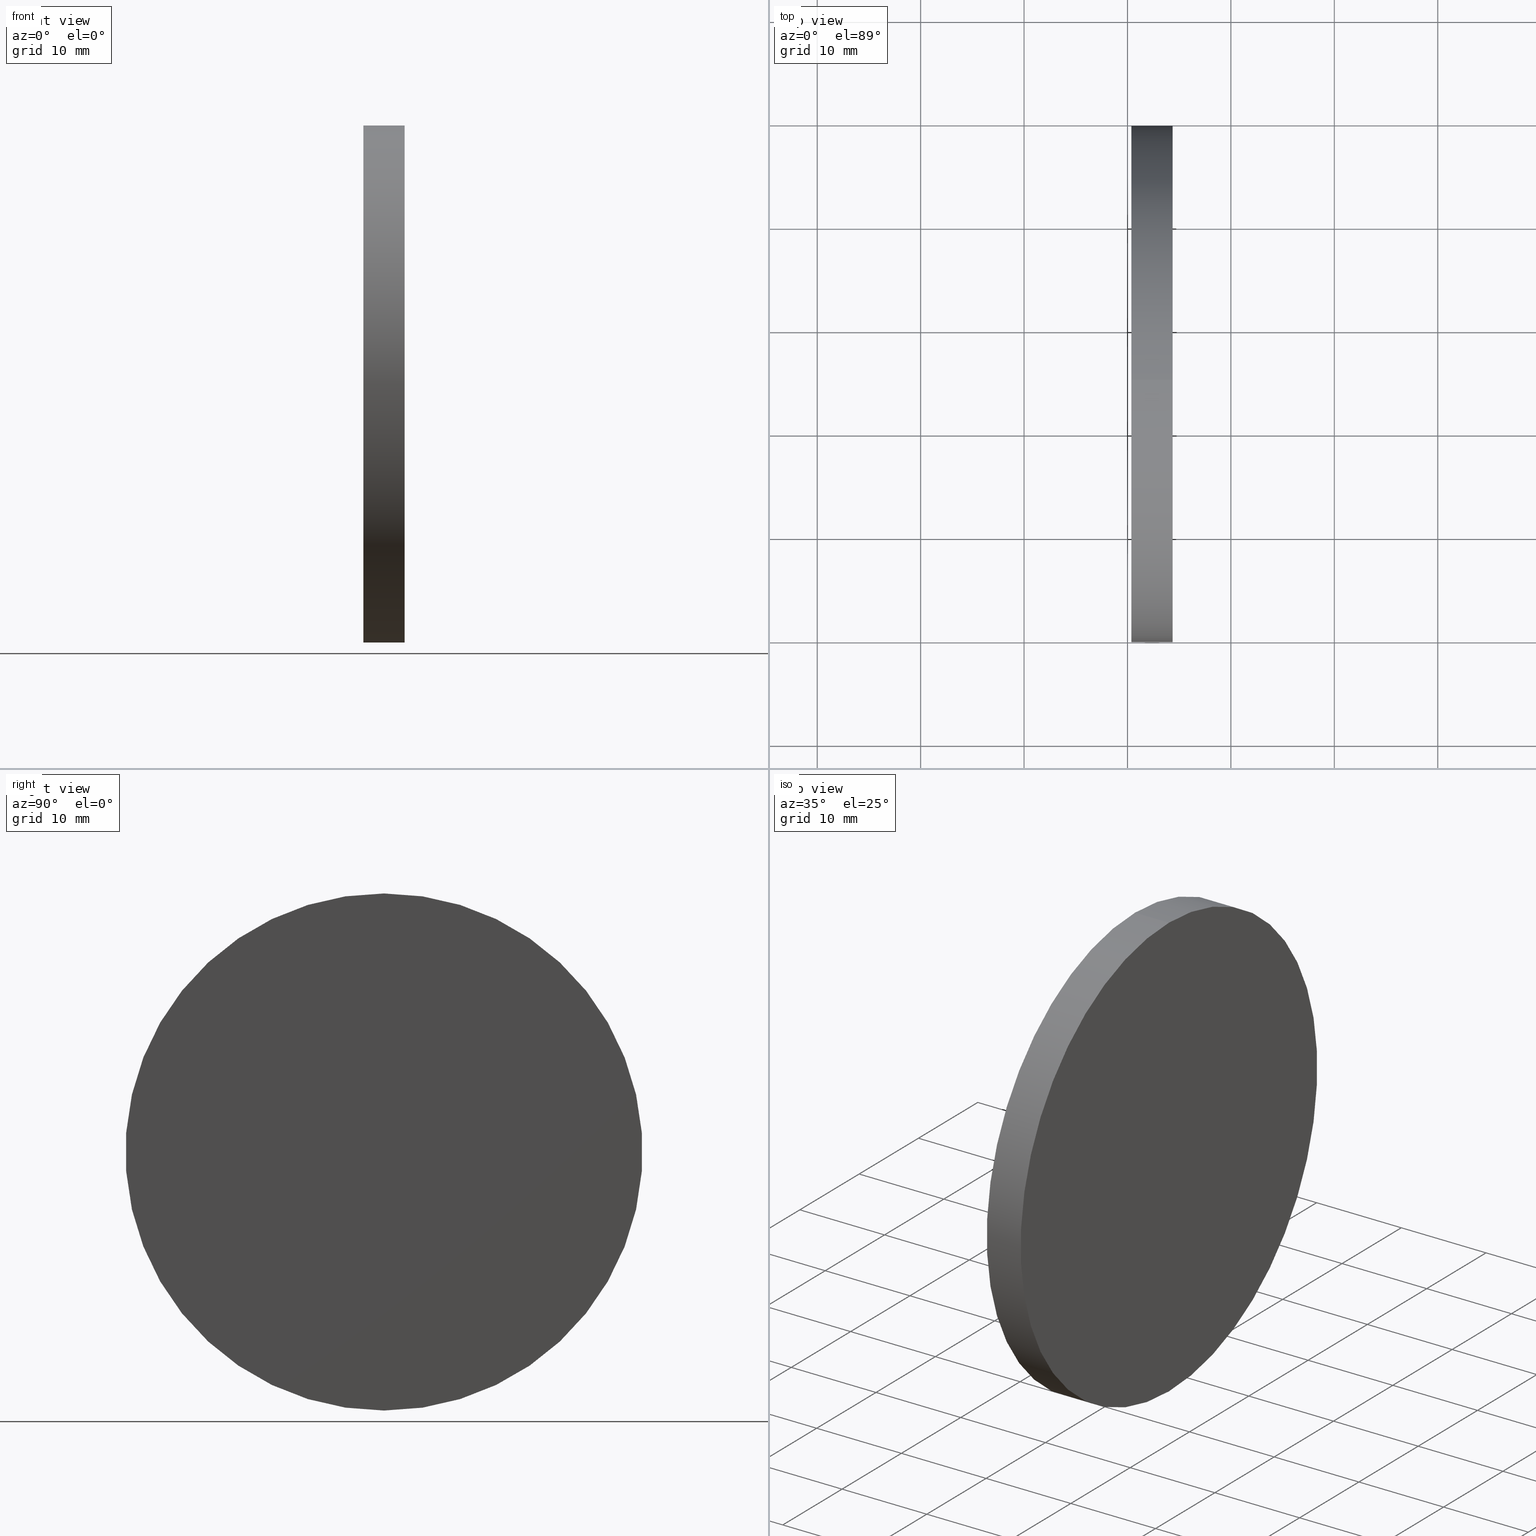
[diagram: canonical four-view strip — front | top / right | iso, engineering-drawing reading convention]
A machine part, canonical four-view strip (front | top / right | iso — engineering-drawing reading convention). The complete STEP part file that produces these views, byte-faithful:
ISO-10303-21;
HEADER;
FILE_DESCRIPTION (( 'STEP AP214' ),
    '1' );
FILE_NAME ('260011.STEP',
    '2019-07-15T05:24:47',
    ( '' ),
    ( '' ),
    'SwSTEP 2.0',
    'SolidWorks 2016',
    '' );
FILE_SCHEMA (( 'AUTOMOTIVE_DESIGN' ));
ENDSEC;

DATA;
#1 = ADVANCED_FACE ( 'NONE', ( #28 ), #8, .T. ) ;
#2 = FACE_OUTER_BOUND ( 'NONE', #110, .T. ) ;
#3 = DIRECTION ( 'NONE',  ( -1.000000000000000000, -0.0000000000000000000, -0.0000000000000000000 ) ) ;
#4 = EDGE_CURVE ( 'NONE', #64, #19, #6, .T. ) ;
#5 =( LENGTH_UNIT ( ) NAMED_UNIT ( * ) SI_UNIT ( .MILLI., .METRE. ) );
#6 = LINE ( 'NONE', #132, #49 ) ;
#7 = CYLINDRICAL_SURFACE ( 'NONE', #57, 24.99999999999999300 ) ;
#8 = CYLINDRICAL_SURFACE ( 'NONE', #120, 24.99999999999999300 ) ;
#9 = PRODUCT_RELATED_PRODUCT_CATEGORY ( 'part', '', ( #129 ) ) ;
#10 = ORIENTED_EDGE ( 'NONE', *, *, #84, .F. ) ;
#11 = PRESENTATION_STYLE_ASSIGNMENT (( #79 ) ) ;
#12 = CIRCLE ( 'NONE', #61, 24.99999999999999300 ) ;
#13 =( NAMED_UNIT ( * ) PLANE_ANGLE_UNIT ( ) SI_UNIT ( $, .RADIAN. ) );
#14 = CARTESIAN_POINT ( 'NONE',  ( 520.3697231656161600, 154.5863586980308400, 24.99999999999999300 ) ) ;
#15 = CARTESIAN_POINT ( 'NONE',  ( 524.3697231656161600, 154.5863586980308400, 24.99999999999999300 ) ) ;
#16 = SURFACE_STYLE_USAGE ( .BOTH. , #112 ) ;
#17 = DIRECTION ( 'NONE',  ( 1.000000000000000000, 0.0000000000000000000, 0.0000000000000000000 ) ) ;
#18 = AXIS2_PLACEMENT_3D ( 'NONE', #109, #89, #33 ) ;
#19 = VERTEX_POINT ( 'NONE', #134 ) ;
#20 = CIRCLE ( 'NONE', #68, 24.99999999999999300 ) ;
#21 = DIRECTION ( 'NONE',  ( -1.000000000000000000, -0.0000000000000000000, -0.0000000000000000000 ) ) ;
#22 = APPLICATION_PROTOCOL_DEFINITION ( 'draft international standard', 'automotive_design', 1998, #50 ) ;
#23 = PLANE ( 'NONE',  #18 ) ;
#24 = DIRECTION ( 'NONE',  ( 0.0000000000000000000, 0.0000000000000000000, 1.000000000000000000 ) ) ;
#25 = CARTESIAN_POINT ( 'NONE',  ( 524.3697231656161600, 154.5863586980308400, 0.0000000000000000000 ) ) ;
#26 = EDGE_LOOP ( 'NONE', ( #119, #135 ) ) ;
#27 =( NAMED_UNIT ( * ) SI_UNIT ( $, .STERADIAN. ) SOLID_ANGLE_UNIT ( ) );
#28 = FACE_OUTER_BOUND ( 'NONE', #127, .T. ) ;
#29 = ADVANCED_FACE ( 'NONE', ( #140 ), #23, .F. ) ;
#30 = ORIENTED_EDGE ( 'NONE', *, *, #62, .T. ) ;
#31 = VERTEX_POINT ( 'NONE', #14 ) ;
#32 = DIRECTION ( 'NONE',  ( -1.000000000000000000, -0.0000000000000000000, -0.0000000000000000000 ) ) ;
#33 = DIRECTION ( 'NONE',  ( -0.0000000000000000000, 0.0000000000000000000, 1.000000000000000000 ) ) ;
#34 = DIRECTION ( 'NONE',  ( -1.000000000000000000, -0.0000000000000000000, -0.0000000000000000000 ) ) ;
#35 = EDGE_CURVE ( 'NONE', #114, #31, #87, .T. ) ;
#36 = ORIENTED_EDGE ( 'NONE', *, *, #84, .T. ) ;
#37 = EDGE_CURVE ( 'NONE', #64, #114, #46, .T. ) ;
#38 = UNCERTAINTY_MEASURE_WITH_UNIT (LENGTH_MEASURE( 1.000000000000000100E-005 ), #98, 'distance_accuracy_value', 'NONE');
#39 = STYLED_ITEM ( 'NONE', ( #100 ), #45 ) ;
#40 =( NAMED_UNIT ( * ) PLANE_ANGLE_UNIT ( ) SI_UNIT ( $, .RADIAN. ) );
#41 = DIRECTION ( 'NONE',  ( 0.0000000000000000000, 0.0000000000000000000, 1.000000000000000000 ) ) ;
#42 = EDGE_LOOP ( 'NONE', ( #91, #80, #10, #56 ) ) ;
#43 = DIRECTION ( 'NONE',  ( -1.000000000000000000, -0.0000000000000000000, -0.0000000000000000000 ) ) ;
#44 =( NAMED_UNIT ( * ) SI_UNIT ( $, .STERADIAN. ) SOLID_ANGLE_UNIT ( ) );
#45 = MANIFOLD_SOLID_BREP ( '��ת1', #104 ) ;
#46 = CIRCLE ( 'NONE', #115, 24.99999999999999300 ) ;
#47 = AXIS2_PLACEMENT_3D ( 'NONE', #55, #97, #96 ) ;
#48 = ADVANCED_FACE ( 'NONE', ( #117 ), #7, .T. ) ;
#49 = VECTOR ( 'NONE', #34, 1000.000000000000000 ) ;
#50 = APPLICATION_CONTEXT ( 'automotive_design' ) ;
#51 = MECHANICAL_DESIGN_GEOMETRIC_PRESENTATION_REPRESENTATION (  '', ( #39 ), #81 ) ;
#52 = DIRECTION ( 'NONE',  ( 0.0000000000000000000, 0.0000000000000000000, 1.000000000000000000 ) ) ;
#53 = CARTESIAN_POINT ( 'NONE',  ( 524.3697231656161600, 154.5863586980308400, 0.0000000000000000000 ) ) ;
#54 = DIRECTION ( 'NONE',  ( -1.000000000000000000, -0.0000000000000000000, -0.0000000000000000000 ) ) ;
#55 = CARTESIAN_POINT ( 'NONE',  ( 520.3697231656161600, 154.5863586980308400, 0.0000000000000000000 ) ) ;
#56 = ORIENTED_EDGE ( 'NONE', *, *, #35, .F. ) ;
#57 = AXIS2_PLACEMENT_3D ( 'NONE', #122, #43, #111 ) ;
#58 = PRODUCT_CONTEXT ( 'NONE', #50, 'mechanical' ) ;
#59 = VECTOR ( 'NONE', #88, 1000.000000000000000 ) ;
#60 = COLOUR_RGB ( '',1.000000000000000000, 1.000000000000000000, 1.000000000000000000 ) ;
#61 = AXIS2_PLACEMENT_3D ( 'NONE', #121, #21, #41 ) ;
#62 = EDGE_CURVE ( 'NONE', #19, #31, #12, .T. ) ;
#63 = CARTESIAN_POINT ( 'NONE',  ( 520.3697231656161600, 154.5863586980308400, 0.0000000000000000000 ) ) ;
#64 = VERTEX_POINT ( 'NONE', #137 ) ;
#65 = CARTESIAN_POINT ( 'NONE',  ( 0.0000000000000000000, 0.0000000000000000000, 0.0000000000000000000 ) ) ;
#66 = APPLICATION_CONTEXT ( 'automotive_design' ) ;
#67 = UNCERTAINTY_MEASURE_WITH_UNIT (LENGTH_MEASURE( 1.000000000000000100E-005 ), #5, 'distance_accuracy_value', 'NONE');
#68 = AXIS2_PLACEMENT_3D ( 'NONE', #53, #54, #52 ) ;
#69 = ORIENTED_EDGE ( 'NONE', *, *, #62, .F. ) ;
#70 = SURFACE_STYLE_FILL_AREA ( #75 ) ;
#71 = PRODUCT_DEFINITION_SHAPE ( 'NONE', 'NONE',  #77 ) ;
#72 = SURFACE_STYLE_FILL_AREA ( #108 ) ;
#73 =( GEOMETRIC_REPRESENTATION_CONTEXT ( 3 ) GLOBAL_UNCERTAINTY_ASSIGNED_CONTEXT ( ( #38 ) ) GLOBAL_UNIT_ASSIGNED_CONTEXT ( ( #98, #40, #86 ) ) REPRESENTATION_CONTEXT ( 'NONE', 'WORKASPACE' ) );
#74 = DIRECTION ( 'NONE',  ( 0.0000000000000000000, 0.0000000000000000000, 1.000000000000000000 ) ) ;
#75 = FILL_AREA_STYLE ('',( #131 ) ) ;
#76 = CARTESIAN_POINT ( 'NONE',  ( 500.7375676965768300, 154.5863586980308400, 24.99999999999999300 ) ) ;
#77 = PRODUCT_DEFINITION ( 'δ֪', '', #94, #139 ) ;
#78 = DIRECTION ( 'NONE',  ( 0.0000000000000000000, 0.0000000000000000000, 1.000000000000000000 ) ) ;
#79 = SURFACE_STYLE_USAGE ( .BOTH. , #92 ) ;
#80 = ORIENTED_EDGE ( 'NONE', *, *, #4, .T. ) ;
#81 =( GEOMETRIC_REPRESENTATION_CONTEXT ( 3 ) GLOBAL_UNCERTAINTY_ASSIGNED_CONTEXT ( ( #67 ) ) GLOBAL_UNIT_ASSIGNED_CONTEXT ( ( #5, #13, #44 ) ) REPRESENTATION_CONTEXT ( 'NONE', 'WORKASPACE' ) );
#82 = COLOUR_RGB ( '',1.000000000000000000, 1.000000000000000000, 1.000000000000000000 ) ;
#83 = UNCERTAINTY_MEASURE_WITH_UNIT (LENGTH_MEASURE( 1.000000000000000100E-005 ), #124, 'distance_accuracy_value', 'NONE');
#84 = EDGE_CURVE ( 'NONE', #31, #19, #105, .T. ) ;
#85 = EDGE_CURVE ( 'NONE', #114, #64, #20, .T. ) ;
#86 =( NAMED_UNIT ( * ) SI_UNIT ( $, .STERADIAN. ) SOLID_ANGLE_UNIT ( ) );
#87 = LINE ( 'NONE', #76, #59 ) ;
#88 = DIRECTION ( 'NONE',  ( -1.000000000000000000, -0.0000000000000000000, -0.0000000000000000000 ) ) ;
#89 = DIRECTION ( 'NONE',  ( -1.000000000000000000, 0.0000000000000000000, -0.0000000000000000000 ) ) ;
#90 = DIRECTION ( 'NONE',  ( 1.000000000000000000, 0.0000000000000000000, 0.0000000000000000000 ) ) ;
#91 = ORIENTED_EDGE ( 'NONE', *, *, #85, .T. ) ;
#92 = SURFACE_SIDE_STYLE ('',( #72 ) ) ;
#93 = STYLED_ITEM ( 'NONE', ( #11 ), #125 ) ;
#94 = PRODUCT_DEFINITION_FORMATION_WITH_SPECIFIED_SOURCE ( '�κ�', '', #129, .NOT_KNOWN. ) ;
#95 = AXIS2_PLACEMENT_3D ( 'NONE', #63, #90, #107 ) ;
#96 = DIRECTION ( 'NONE',  ( 0.0000000000000000000, 0.0000000000000000000, 1.000000000000000000 ) ) ;
#97 = DIRECTION ( 'NONE',  ( -1.000000000000000000, -0.0000000000000000000, -0.0000000000000000000 ) ) ;
#98 =( LENGTH_UNIT ( ) NAMED_UNIT ( * ) SI_UNIT ( .MILLI., .METRE. ) );
#99 = FILL_AREA_STYLE_COLOUR ( '', #60 ) ;
#100 = PRESENTATION_STYLE_ASSIGNMENT (( #16 ) ) ;
#101 = APPLICATION_PROTOCOL_DEFINITION ( 'draft international standard', 'automotive_design', 1998, #66 ) ;
#102 = ORIENTED_EDGE ( 'NONE', *, *, #35, .T. ) ;
#103 = MECHANICAL_DESIGN_GEOMETRIC_PRESENTATION_REPRESENTATION (  '', ( #93 ), #118 ) ;
#104 = CLOSED_SHELL ( 'NONE', ( #48, #128, #1, #29 ) ) ;
#105 = CIRCLE ( 'NONE', #47, 24.99999999999999300 ) ;
#106 = ORIENTED_EDGE ( 'NONE', *, *, #37, .T. ) ;
#107 = DIRECTION ( 'NONE',  ( 0.0000000000000000000, 0.0000000000000000000, -1.000000000000000000 ) ) ;
#108 = FILL_AREA_STYLE ('',( #99 ) ) ;
#109 = CARTESIAN_POINT ( 'NONE',  ( 524.3697231656161600, 179.5863586980308400, 0.0000000000000000000 ) ) ;
#110 = EDGE_LOOP ( 'NONE', ( #36, #30 ) ) ;
#111 = DIRECTION ( 'NONE',  ( 0.0000000000000000000, 0.0000000000000000000, 1.000000000000000000 ) ) ;
#112 = SURFACE_SIDE_STYLE ('',( #70 ) ) ;
#113 = PRESENTATION_LAYER_ASSIGNMENT (  '', '', ( #93 ) ) ;
#114 = VERTEX_POINT ( 'NONE', #15 ) ;
#115 = AXIS2_PLACEMENT_3D ( 'NONE', #25, #3, #24 ) ;
#116 = ORIENTED_EDGE ( 'NONE', *, *, #4, .F. ) ;
#117 = FACE_OUTER_BOUND ( 'NONE', #42, .T. ) ;
#118 =( GEOMETRIC_REPRESENTATION_CONTEXT ( 3 ) GLOBAL_UNCERTAINTY_ASSIGNED_CONTEXT ( ( #83 ) ) GLOBAL_UNIT_ASSIGNED_CONTEXT ( ( #124, #123, #27 ) ) REPRESENTATION_CONTEXT ( 'NONE', 'WORKASPACE' ) );
#119 = ORIENTED_EDGE ( 'NONE', *, *, #85, .F. ) ;
#120 = AXIS2_PLACEMENT_3D ( 'NONE', #133, #32, #74 ) ;
#121 = CARTESIAN_POINT ( 'NONE',  ( 520.3697231656161600, 154.5863586980308400, 0.0000000000000000000 ) ) ;
#122 = CARTESIAN_POINT ( 'NONE',  ( 500.7375676965768300, 154.5863586980308400, 0.0000000000000000000 ) ) ;
#123 =( NAMED_UNIT ( * ) PLANE_ANGLE_UNIT ( ) SI_UNIT ( $, .RADIAN. ) );
#124 =( LENGTH_UNIT ( ) NAMED_UNIT ( * ) SI_UNIT ( .MILLI., .METRE. ) );
#125 = ADVANCED_BREP_SHAPE_REPRESENTATION ( '260011', ( #45, #126 ), #73 ) ;
#126 = AXIS2_PLACEMENT_3D ( 'NONE', #65, #78, #17 ) ;
#127 = EDGE_LOOP ( 'NONE', ( #116, #106, #102, #69 ) ) ;
#128 = ADVANCED_FACE ( 'NONE', ( #2 ), #138, .F. ) ;
#129 = PRODUCT ( '260011', '260011', '', ( #58 ) ) ;
#130 = PRESENTATION_LAYER_ASSIGNMENT (  '', '', ( #39 ) ) ;
#131 = FILL_AREA_STYLE_COLOUR ( '', #82 ) ;
#132 = CARTESIAN_POINT ( 'NONE',  ( 500.7375676965768300, 154.5863586980308400, -24.99999999999999300 ) ) ;
#133 = CARTESIAN_POINT ( 'NONE',  ( 500.7375676965768300, 154.5863586980308400, 0.0000000000000000000 ) ) ;
#134 = CARTESIAN_POINT ( 'NONE',  ( 520.3697231656161600, 154.5863586980308400, -24.99999999999999300 ) ) ;
#135 = ORIENTED_EDGE ( 'NONE', *, *, #37, .F. ) ;
#136 = SHAPE_DEFINITION_REPRESENTATION ( #71, #125 ) ;
#137 = CARTESIAN_POINT ( 'NONE',  ( 524.3697231656161600, 154.5863586980308400, -24.99999999999999300 ) ) ;
#138 = PLANE ( 'NONE',  #95 ) ;
#139 = PRODUCT_DEFINITION_CONTEXT ( 'detailed design', #66, 'design' ) ;
#140 = FACE_OUTER_BOUND ( 'NONE', #26, .T. ) ;
ENDSEC;
END-ISO-10303-21;
